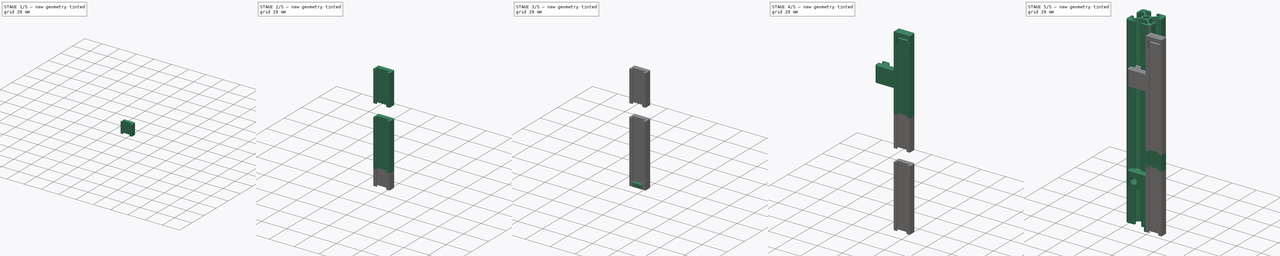
[diagram: build sequence overview — one tinted view per stage of 5, left to right]
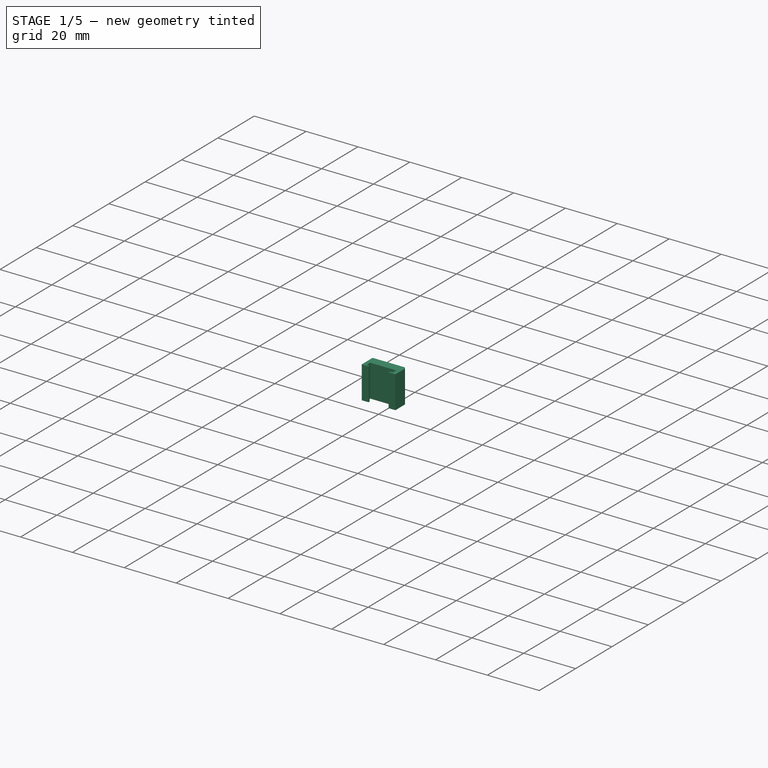
[diagram: stage 1 of 5 — iso view after this stage's code; geometry added in this stage tinted green]
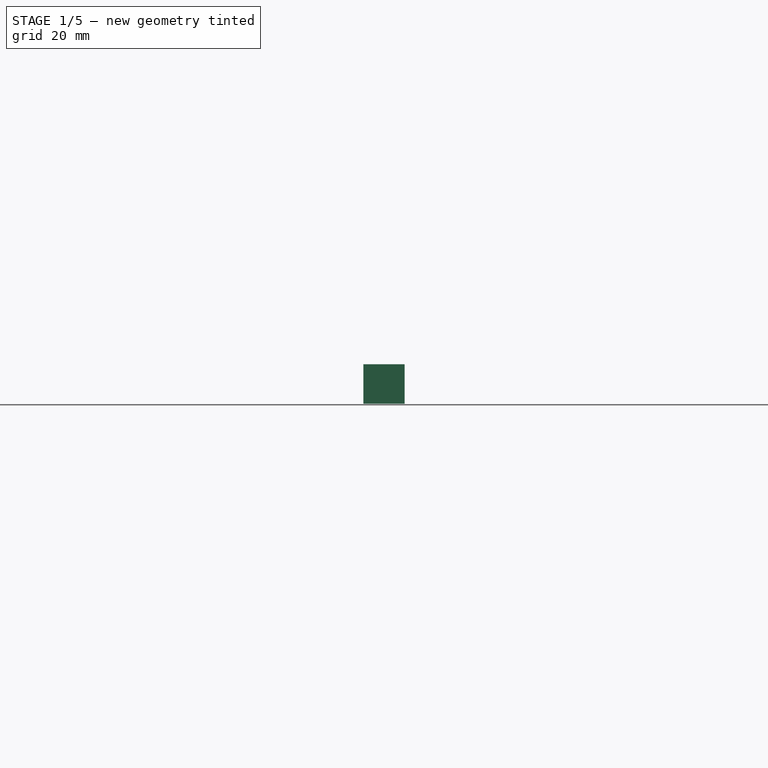
[diagram: stage 1 of 5 — front view after this stage's code; geometry added in this stage tinted green]
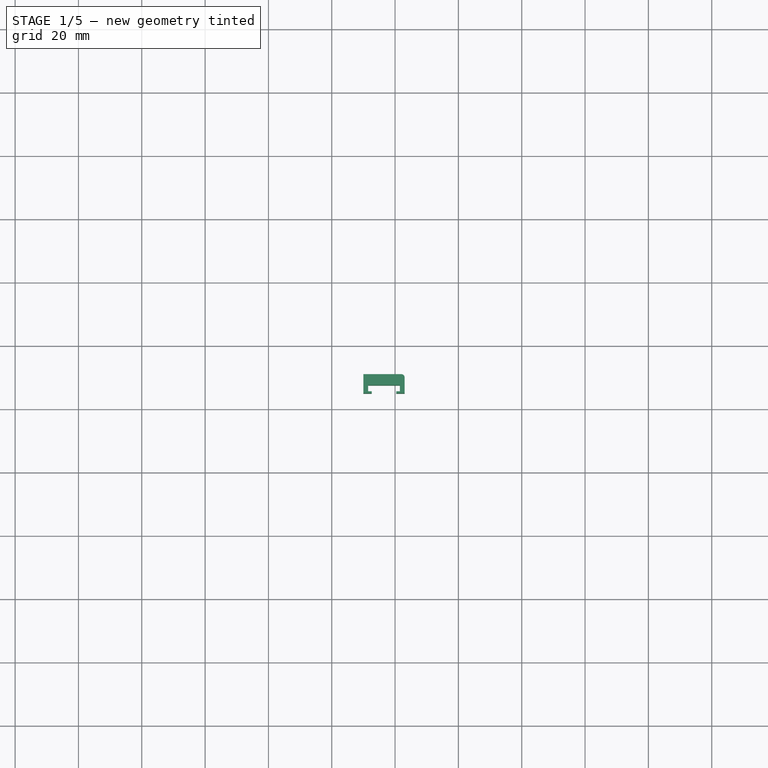
[diagram: stage 1 of 5 — top view after this stage's code; geometry added in this stage tinted green]
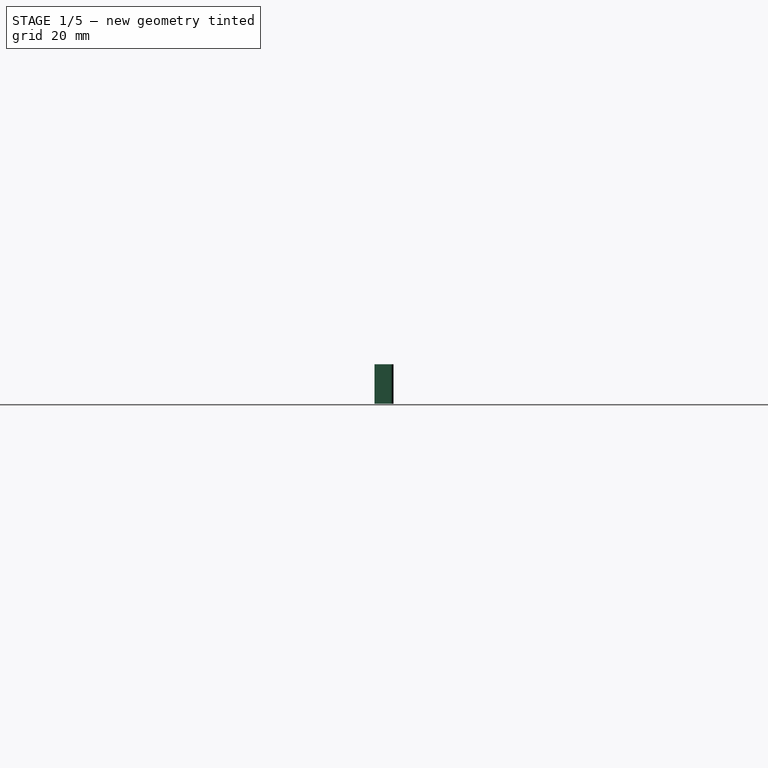
[diagram: stage 1 of 5 — right view after this stage's code; geometry added in this stage tinted green]
FCSTD DOCUMENT  (FreeCAD 0.18R)
Label: LEDstrip-Bracket-BuildingBlocks
License: CreativeCommons Attribution
LicenseURL: http://creativecommons.org/licenses/by/4.0/
objects: PartDesign::Body×14, Sketcher::SketchObject×10, PartDesign::FeatureBase×8, PartDesign::Pad×6, Part::Feature×4, Part::MultiFuse×4, PartDesign::Pocket×3, Spreadsheet::Sheet×1, PartDesign::Revolution×1, App::Part×1, PartDesign::Groove×1, Part::Mirroring×1
note: 63 computed .brp shape members not serialized (recipe doc carries the construction recipe); baked Part::Feature solids carry a one-line shape summary decoded from their .brp

FEATURE [PartDesign::Body] Body  label="ISP5-L20"
  Group = -> [CopySketch029,Pad]
  Origin = -> Origin
  Tip = -> Pad
FEATURE [Sketcher::SketchObject] Sketch015  label="LedStrip-C-Profile"
  MapMode = 5
  Support = -> [XY_Plane031]
  sketch-geometry (13):
    g0: LineSegment StartX=10 StartY=-9 StartZ=0 EndX=10 EndY=-15 EndZ=0
    g1: LineSegment StartX=10 StartY=-15 StartZ=0 EndX=12.625 EndY=-15 EndZ=0
    g2: LineSegment StartX=12.625 StartY=-15 StartZ=0 EndX=12.625 EndY=-14.4 EndZ=0
    g3: LineSegment StartX=12.625 StartY=-14.4 StartZ=0 EndX=11.5 EndY=-14.4 EndZ=0
    g4: LineSegment StartX=11.5 StartY=-14.4 StartZ=0 EndX=11.5 EndY=-12.45 EndZ=0
    g5: LineSegment StartX=11.5 StartY=-12.45 StartZ=0 EndX=21.5 EndY=-12.45 EndZ=0
    g6: LineSegment StartX=21.5 StartY=-12.45 StartZ=0 EndX=21.5 EndY=-14.4 EndZ=0
    g7: LineSegment StartX=21.5 StartY=-14.4 StartZ=0 EndX=20.375 EndY=-14.4 EndZ=0
    g8: LineSegment StartX=20.375 StartY=-14.4 StartZ=0 EndX=20.375 EndY=-15 EndZ=0
    g9: LineSegment StartX=20.375 StartY=-15 StartZ=0 EndX=23 EndY=-15 EndZ=0
    g10: LineSegment StartX=23 StartY=-15 StartZ=0 EndX=23 EndY=-10 EndZ=0
    g11: LineSegment StartX=22 StartY=-9 StartZ=0 EndX=10 EndY=-9 EndZ=0
    g12: ArcOfCircle CenterX=22 CenterY=-10 CenterZ=0 NormalX=0 NormalY=0 NormalZ=1 AngleXU=0 Radius=1 StartAngle=0 EndAngle=1.5708
  constraints (38):
    c: Coincident(g0,g1)
    c: Coincident(g1,g2)
    c: Coincident(g2,g3)
    c: Coincident(g3,g4)
    c: Coincident(g4,g5)
    c: Coincident(g5,g6)
    c: Coincident(g6,g7)
    c: Coincident(g7,g8)
    c: Coincident(g8,g9)
    c: Horizontal(g5)
    c: Horizontal(g3)
    c: Horizontal(g7)
    c: Horizontal(g9)
    c: Horizontal(g1)
    c: Vertical(g10)
    c: Vertical(g8)
    c: Vertical(g2)
    c: Vertical(g0)
    c: Vertical(g4)
    c: DistanceX(g5,g5) = 10
    c: Vertical(g6)
    c: DistanceX(g2,g7) = 7.75
    c: Equal(g3,g7)
    c: DistanceY(g8,g8) = 0.6
    c: Horizontal(g2,g7)
    c: Horizontal(g1,g8)
    c: Horizontal(g11)
    c: DistanceY(g11,g-1) = 9
    c: DistanceY(g4,g4) = 1.95
    c: Tangent(g11,g12) = -1.5708
    c: Tangent(g10,g12) = -1.5708
    c: DistanceX(g-1,g11) = 10
    c: DistanceX(g6,g10) = 1.5
    c: Coincident(g0,g11)
    c: DistanceY(g0,g0) = 6
    c: Radius(g12) = 1
    c: Coincident(g9,g10)
    c: DistanceX(g0,g4) = 1.5
FEATURE [PartDesign::Pad] Pad009  label="LedHolderBase"
  Length = 12.5
  Length2 = 100
  Profile = -> Sketch015
  Type = 0
FEATURE [PartDesign::Body] Body008  label="ClampFix-Part"
  Group = -> [Sketch012,Pad006]
  Origin = -> Origin017
  Placement = pos=(0,-2e-15,18.75) rot=(0.707107,-0.707107,0;3.14159rad)
  Tip = -> Pad006
FEATURE [Sketcher::SketchObject] Sketch016  label="CableStrapPath"
  AttachmentOffset = pos=(0,0,-4) rot=(0,0,1;0rad)
  Placement = pos=(0,0,6.25) rot=(1,0,0;3.14159rad)
  sketch-geometry (10):
    g0: ArcOfCircle CenterX=14.833 CenterY=8.2 CenterZ=0 NormalX=0 NormalY=0 NormalZ=1 AngleXU=0 Radius=2 StartAngle=1.5708 EndAngle=2.73008
    g1: ArcOfCircle CenterX=18.167 CenterY=8.2 CenterZ=0 NormalX=0 NormalY=0 NormalZ=1 AngleXU=0 Radius=2 StartAngle=0.411517 EndAngle=1.5708
    g2: LineSegment StartX=14.833 StartY=10.2 StartZ=0 EndX=18.167 EndY=10.2 EndZ=0
    g3: ArcOfCircle CenterX=14.25 CenterY=9.45 CenterZ=0 NormalX=0 NormalY=0 NormalZ=1 AngleXU=0 Radius=2.25 StartAngle=1.5708 EndAngle=2.46404
    g4: ArcOfCircle CenterX=18.75 CenterY=9.45 CenterZ=0 NormalX=0 NormalY=0 NormalZ=1 AngleXU=0 Radius=2.25 StartAngle=0.677555 EndAngle=1.5708
    g5: LineSegment StartX=14.25 StartY=11.7 StartZ=0 EndX=18.75 EndY=11.7 EndZ=0
    g6: LineSegment StartX=20.503 StartY=10.8605 StartZ=0 EndX=22 EndY=9 EndZ=0
    g7: LineSegment StartX=22 StartY=9 StartZ=0 EndX=20 EndY=9 EndZ=0
    g8: LineSegment StartX=12.497 StartY=10.8605 StartZ=0 EndX=11 EndY=9 EndZ=0
    g9: LineSegment StartX=11 StartY=9 StartZ=0 EndX=13 EndY=9 EndZ=0
  constraints (28):
    c: Tangent(g0,g2) = 1.5708
    c: Tangent(g1,g2) = 1.5708
    c: Horizontal(g0,g1)
    c: Horizontal(g2)
    c: Horizontal(g0,g1)
    c: Tangent(g3,g5) = 1.5708
    c: Tangent(g4,g5) = 1.5708
    c: Horizontal(g3,g4)
    c: Horizontal(g5)
    c: Horizontal(g3,g4)
    c: DistanceY(g1,g4) = 1.5
    c: Coincident(g6,g7)
    c: Coincident(g8,g9)
    c: Horizontal(g9)
    c: Horizontal(g7)
    c: Coincident(g0,g9)
    c: Coincident(g1,g7)
    c: Tangent(g4,g6) = 1.5708
    c: Tangent(g8,g3) = -1.5708
    c: DistanceX(g7,g7) = 2
    c: Equal(g9,g7)
    c: DistanceY(g1,g1) = 1.2
    c: Radius(g3) = 2.25
    c: Radius(g0) = 2
    c: DistanceX(g0,g1) = 7
    c: DistanceX(g5,g5) = 4.5
    c: DistanceY(g-1,g8) = 9
    c: DistanceX(g-1,g8) = 11
FEATURE [PartDesign::Pocket] Pocket001  label="120mmx2.5mm-CableStrapTunnel"
  BaseFeature = -> Pad009
  Length = 3.5
  Length2 = 100
  Midplane = true
  Profile = -> Sketch016
  Type = 0
FEATURE [PartDesign::Body] Body019  label="SF-Seg1"
  BaseFeature = -> Body012
  Group = -> [Clone]
  Origin = -> Origin029
  Tip = -> Clone
FEATURE [PartDesign::FeatureBase] Clone001
  BaseFeature = -> Body012
FEATURE [PartDesign::Body] Body012006  label="CF-Seg2"
  Group = -> [Clone006]
  Origin = -> Origin036
  Placement = pos=(0,0,12.5) rot=(0,0,1;0rad)
  Tip = -> Clone006
FEATURE [PartDesign::FeatureBase] Clone007
  BaseFeature = -> Clone001
FEATURE [PartDesign::Body] Body012007  label="CF-Seg3"
  Group = -> [Clone007]
  Origin = -> Origin037
  Placement = pos=(0,0,25) rot=(0,0,1;0rad)
  Tip = -> Clone007
FEATURE [PartDesign::FeatureBase] Clone008
  BaseFeature = -> Clone001
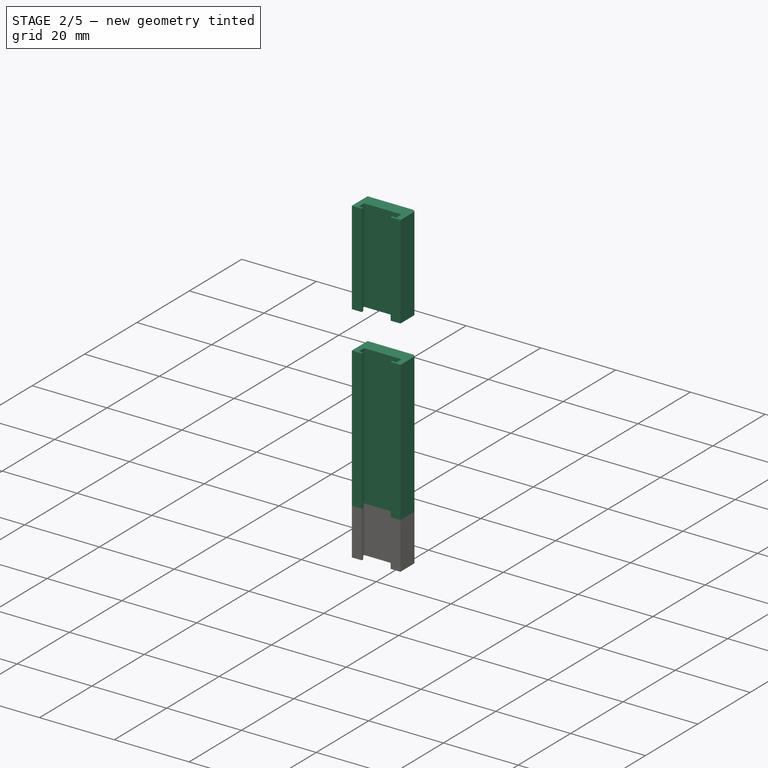
[diagram: stage 2 of 5 — iso view after this stage's code; geometry added in this stage tinted green]
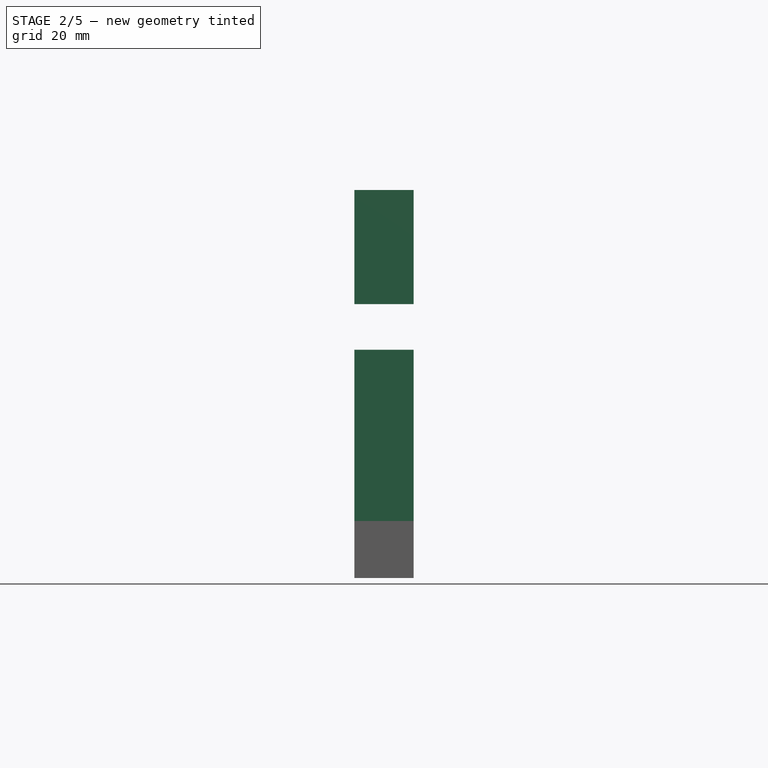
[diagram: stage 2 of 5 — front view after this stage's code; geometry added in this stage tinted green]
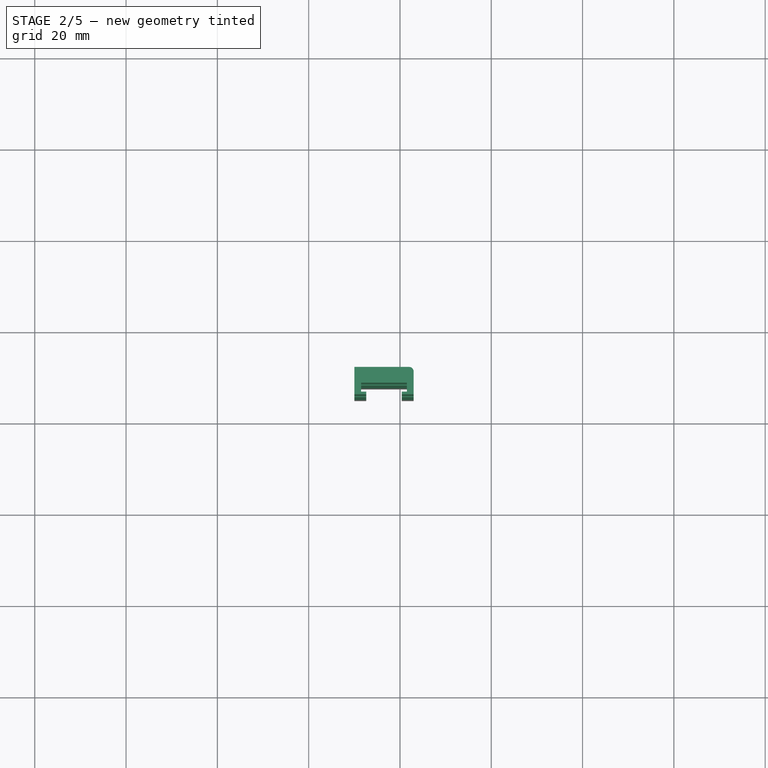
[diagram: stage 2 of 5 — top view after this stage's code; geometry added in this stage tinted green]
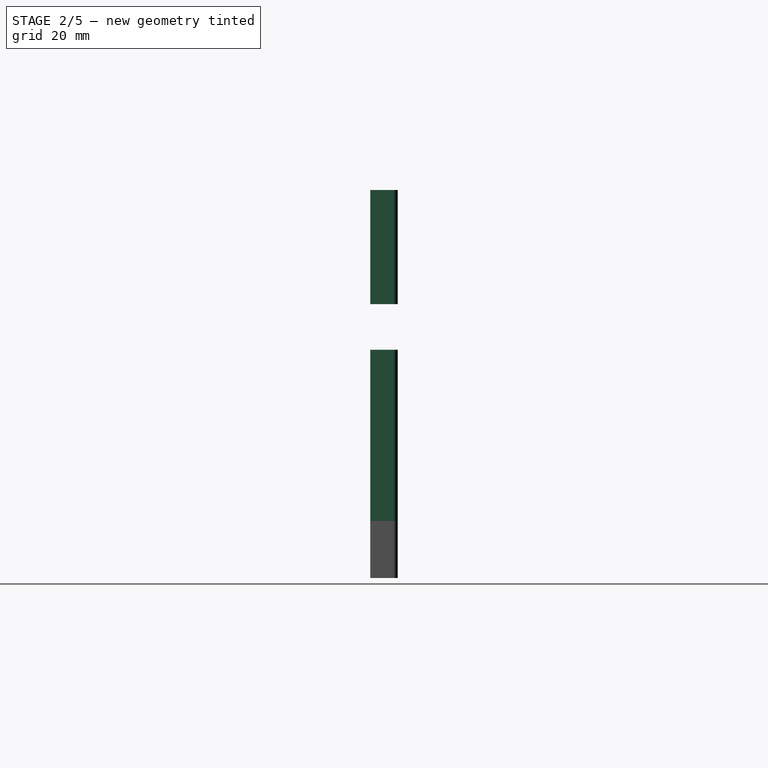
[diagram: stage 2 of 5 — right view after this stage's code; geometry added in this stage tinted green]
FEATURE [Part::Feature] Body012001  label="LedStripBracket-12.5mm-Segment001"
  shape: bbox 13 x 6 x 12.5 mm, 25 faces (baked)
FEATURE [Part::Feature] Body012002  label="LedStripBracket-12.5mm-Segment002"
  Placement = pos=(0,0,12.5) rot=(0,0,1;0rad)
  shape: bbox 13 x 6 x 12.5 mm, 25 faces (baked)
FEATURE [Part::MultiFuse] Fusion003  label="25mm-Segment"
  Placement = pos=(0,0,60) rot=(0,0,1;0rad)
  Shapes = -> [Body012002,Body012001]
FEATURE [Part::Feature] Fusion003001  label="25mm-Segment001"
  shape: bbox 13 x 6 x 25 mm, 48 faces (baked)
FEATURE [Part::Feature] Fusion003002  label="25mm-Segment002"
  Placement = pos=(0,0,25) rot=(0,0,1;0rad)
  shape: bbox 13 x 6 x 25 mm, 48 faces (baked)
FEATURE [Part::MultiFuse] Fusion003003  label="50mm-Segment"
  Shapes = -> [Fusion003002,Fusion003001]
FEATURE [PartDesign::FeatureBase] Clone004
  BaseFeature = -> Body012
FEATURE [PartDesign::Body] Body012004  label="SF-Seg3"
  Group = -> [Clone004]
  Origin = -> Origin034
  Placement = pos=(0,0,25) rot=(0,0,1;0rad)
  Tip = -> Clone004
FEATURE [PartDesign::FeatureBase] Clone005
  BaseFeature = -> Body012
FEATURE [PartDesign::FeatureBase] Clone006
  BaseFeature = -> Clone001
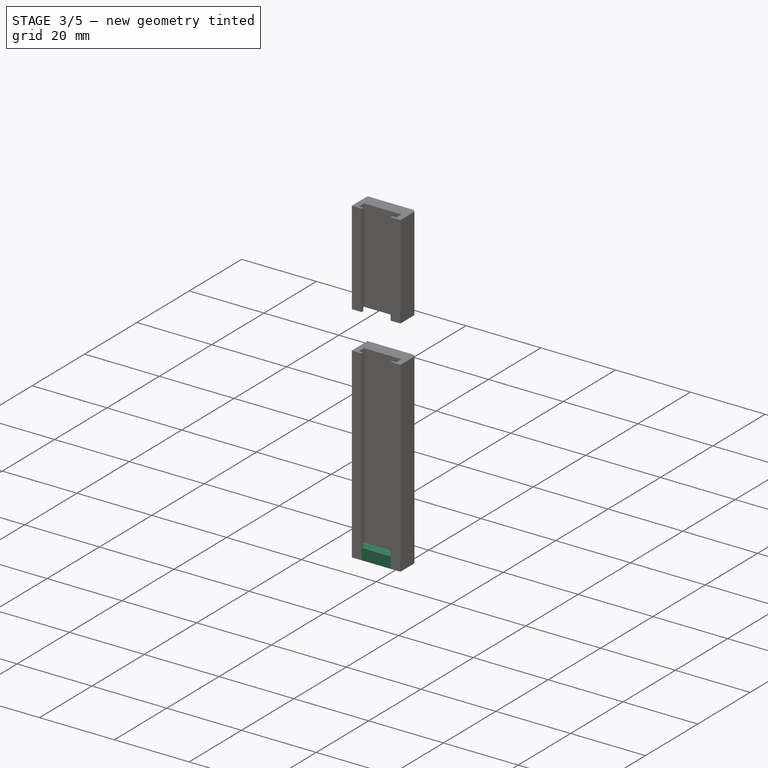
[diagram: stage 3 of 5 — iso view after this stage's code; geometry added in this stage tinted green]
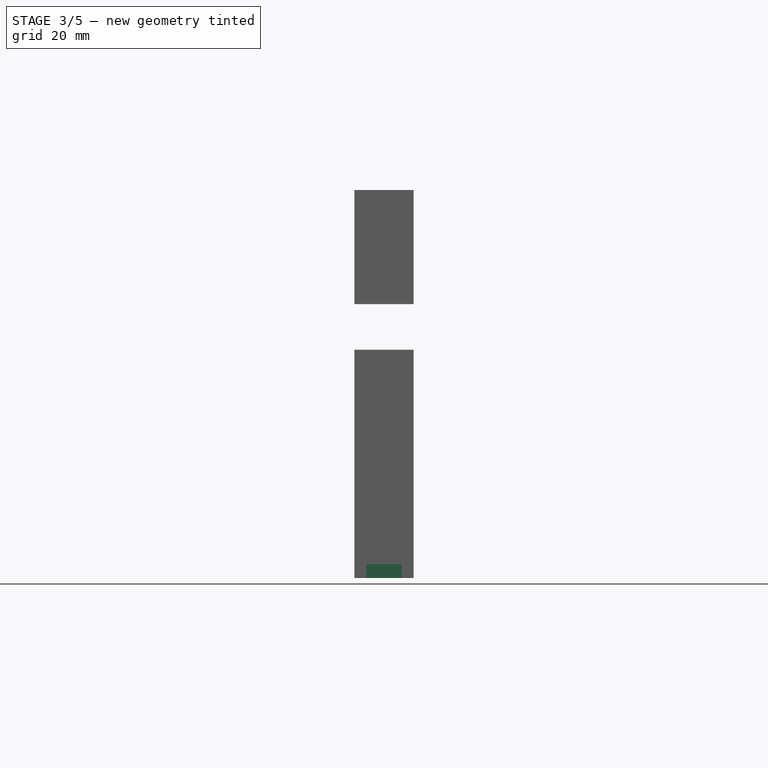
[diagram: stage 3 of 5 — front view after this stage's code; geometry added in this stage tinted green]
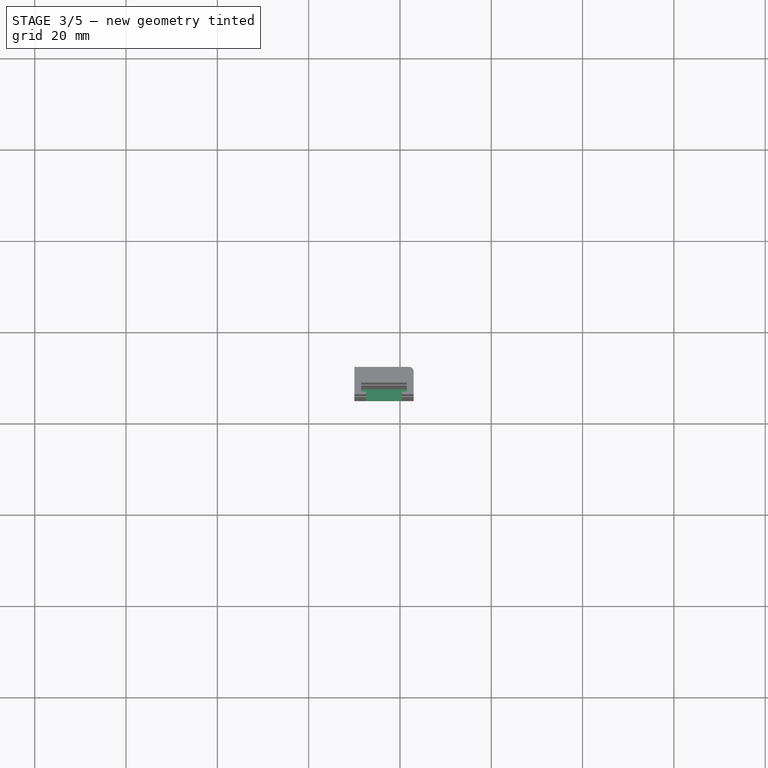
[diagram: stage 3 of 5 — top view after this stage's code; geometry added in this stage tinted green]
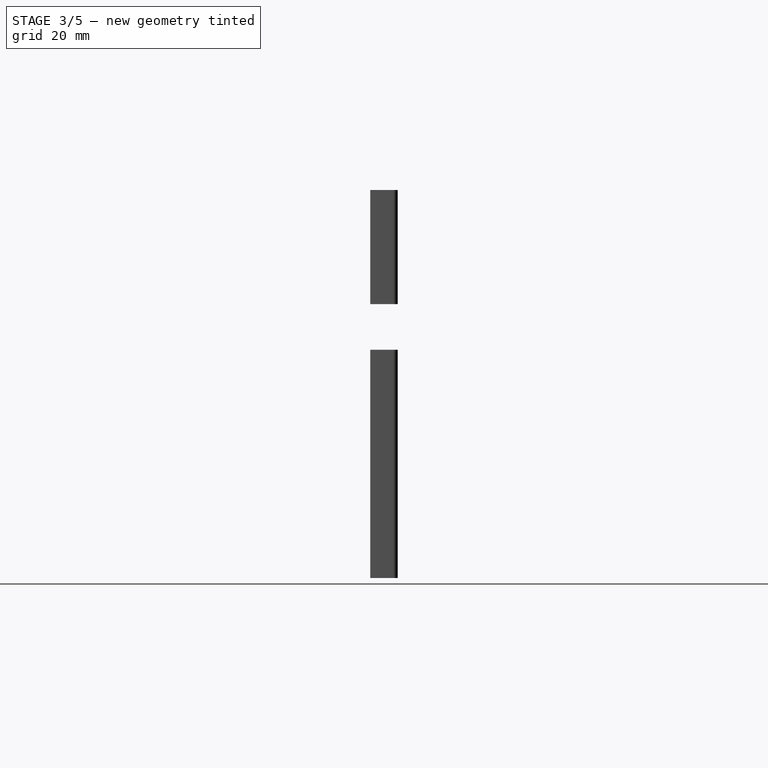
[diagram: stage 3 of 5 — right view after this stage's code; geometry added in this stage tinted green]
FEATURE [PartDesign::Body] Body020  label="CF-Seg1"
  BaseFeature = -> Body012
  Group = -> [Clone001]
  Origin = -> Origin030
  Tip = -> Clone001
FEATURE [PartDesign::Pad] Pad014  label="LedHolderBase001"
  Length = 10
  Length2 = 100
  Profile = -> Sketch015
  Type = 0
FEATURE [Sketcher::SketchObject] Sketch  label="CableViaProfile"
  MapMode = 5
  Placement = pos=(0,-12.45,0) rot=(1,0,0;1.5708rad)
  Support = -> [Pad014]
  sketch-geometry (4):
    g0: LineSegment StartX=21.5 StartY=5.5 StartZ=0 EndX=11.5 EndY=5.5 EndZ=0
    g1: LineSegment StartX=21.5 StartY=3 StartZ=0 EndX=11.5 EndY=3 EndZ=0
    g2: LineSegment StartX=11.5 StartY=5.5 StartZ=0 EndX=11.5 EndY=3 EndZ=0
    g3: LineSegment StartX=21.5 StartY=5.5 StartZ=0 EndX=21.5 EndY=3 EndZ=0
  constraints (12):
    c: Horizontal(g0)
    c: DistanceX(g0,g0) = 10
    c: Coincident(g0,g2)
    c: Coincident(g1,g2)
    c: Coincident(g0,g3)
    c: Coincident(g1,g3)
    c: Vertical(g3)
    c: Vertical(g2)
    c: Horizontal(g1)
    c: DistanceX(g-1,g1) = 11.5
    c: DistanceY(g2,g2) = 2.5
    c: DistanceY(g-1,g1) = 3
FEATURE [PartDesign::Pocket] Pocket  label="CableVIa"
  BaseFeature = -> Pad014
  Length = 5
  Length2 = 100
  Profile = -> Sketch
  Type = 0
FEATURE [Sketcher::SketchObject] Sketch029
  MapMode = 5
  Placement = pos=(0,0,0) rot=(1,0,0;3.14159rad)
  Support = -> [Pocket]
  sketch-geometry (4):
    g0: LineSegment StartX=10 StartY=15 StartZ=0 EndX=23 EndY=15 EndZ=0
    g1: LineSegment StartX=23 StartY=15 StartZ=0 EndX=23 EndY=12 EndZ=0
    g2: LineSegment StartX=23 StartY=12 StartZ=0 EndX=10 EndY=12 EndZ=0
    g3: LineSegment StartX=10 StartY=12 StartZ=0 EndX=10 EndY=15 EndZ=0
  constraints (12):
    c: Coincident(g0,g1)
    c: Coincident(g1,g2)
    c: Coincident(g2,g3)
    c: Coincident(g3,g0)
    c: Horizontal(g0)
    c: Horizontal(g2)
    c: Vertical(g1)
    c: Vertical(g3)
    c: DistanceX(g0,g0) = 13
    c: DistanceX(g-1,g0) = 10
    c: DistanceY(g3,g3) = 3
    c: DistanceY(g-1,g0) = 15
FEATURE [PartDesign::Pad] Pad015
  BaseFeature = -> Pocket
  Length = 3
  Length2 = 100
  Profile = -> Sketch029
  Reversed = true
  Type = 0
FEATURE [Sketcher::SketchObject] Sketch030
  MapMode = 5
  Placement = pos=(0,-15,0) rot=(1,0,0;1.5708rad)
  Support = -> [Pad015]
  sketch-geometry (4):
    g0: LineSegment StartX=11.5 StartY=10 StartZ=0 EndX=21.5 EndY=10 EndZ=0
    g1: LineSegment StartX=21.5 StartY=10 StartZ=0 EndX=21.5 EndY=3 EndZ=0
    g2: LineSegment StartX=21.5 StartY=3 StartZ=0 EndX=11.5 EndY=3 EndZ=0
    g3: LineSegment StartX=11.5 StartY=3 StartZ=0 EndX=11.5 EndY=10 EndZ=0
  constraints (12):
    c: Coincident(g0,g1)
    c: Coincident(g1,g2)
    c: Coincident(g2,g3)
    c: Coincident(g3,g0)
    c: Horizontal(g0)
    c: Horizontal(g2)
    c: Vertical(g1)
    c: Vertical(g3)
    c: DistanceX(g-1,g2) = 11.5
    c: DistanceX(g0,g0) = 10
    c: DistanceY(g-1,g2) = 3
    c: DistanceY(g3,g3) = 7
FEATURE [PartDesign::Pocket] Pocket002
  BaseFeature = -> Pad015
  Length = 1
  Length2 = 100
  Profile = -> Sketch030
  Type = 0
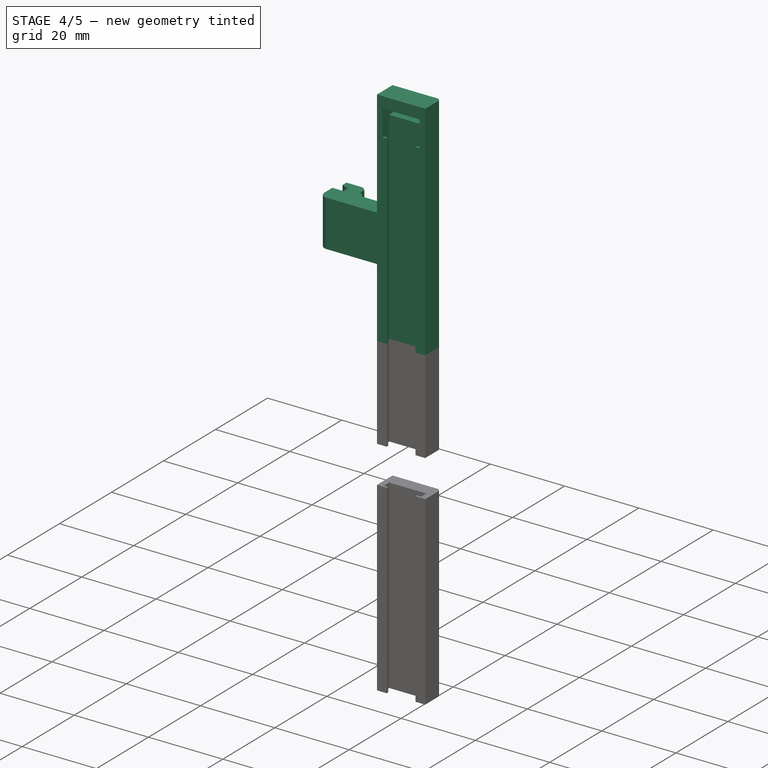
[diagram: stage 4 of 5 — iso view after this stage's code; geometry added in this stage tinted green]
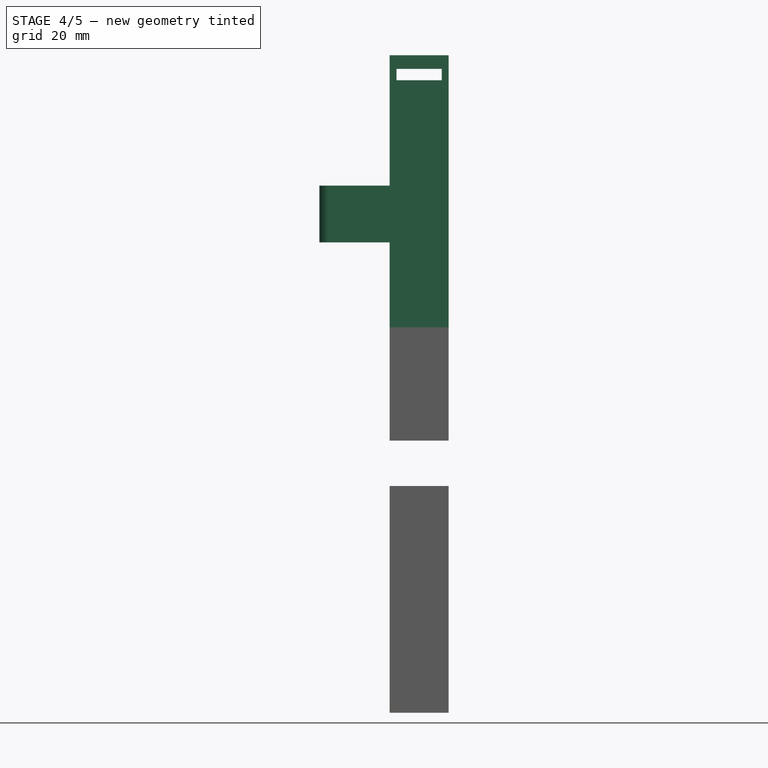
[diagram: stage 4 of 5 — front view after this stage's code; geometry added in this stage tinted green]
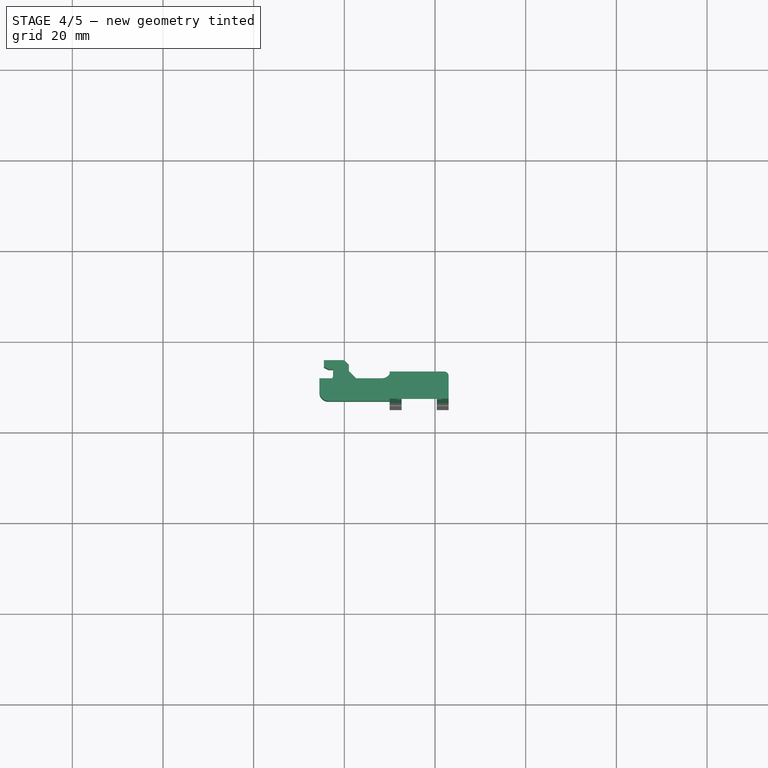
[diagram: stage 4 of 5 — top view after this stage's code; geometry added in this stage tinted green]
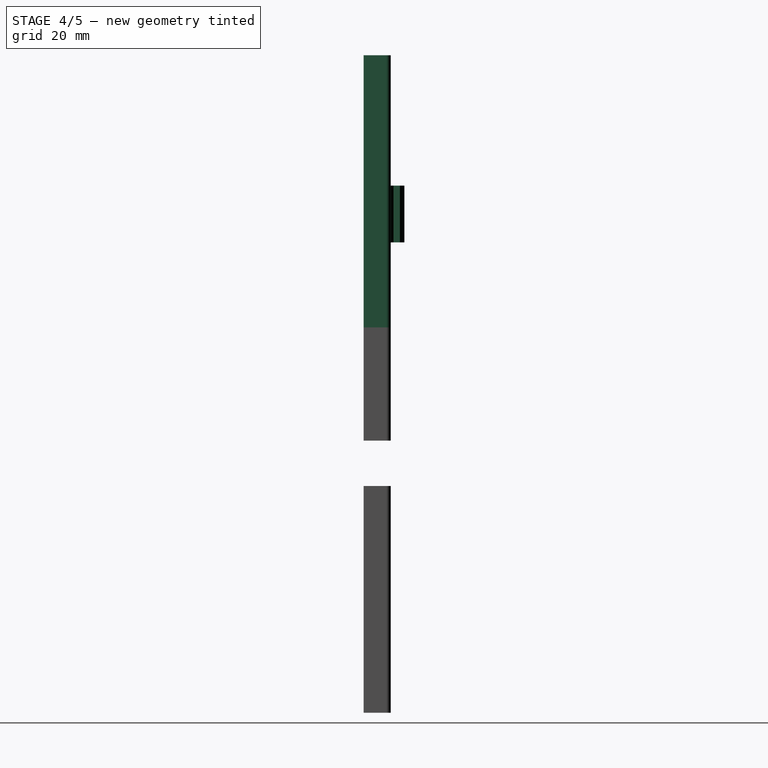
[diagram: stage 4 of 5 — right view after this stage's code; geometry added in this stage tinted green]
FEATURE [Sketcher::SketchObject] Sketch012  label="ClampFix-Profile"
  MapMode = 5
  Support = -> [XY_Plane017]
  sketch-geometry (16):
    g0: LineSegment StartX=15 StartY=3.5 StartZ=0 EndX=15 EndY=-10 EndZ=0
    g1: LineSegment StartX=15 StartY=-10 StartZ=0 EndX=9 EndY=-10 EndZ=0
    g2: LineSegment StartX=10 StartY=-8.26795 StartZ=0 EndX=10 EndY=-2.6 EndZ=0
    g3: LineSegment StartX=8.4 StartY=-1 StartZ=0 EndX=7 EndY=-1 EndZ=0
    g4: LineSegment StartX=6 StartY=5e-16 StartZ=0 EndX=6 EndY=4.5 EndZ=0
    g5: LineSegment StartX=6 StartY=4.5 StartZ=0 EndX=7.53369 EndY=4.5 EndZ=0
    g6: LineSegment StartX=8 StartY=3.5 StartZ=0 EndX=8 EndY=2.5 EndZ=0
    g7: LineSegment StartX=10 StartY=2.7 StartZ=0 EndX=10 EndY=5.5 EndZ=0
    g8: LineSegment StartX=7.53369 StartY=4.5 StartZ=0 EndX=8 EndY=3.5 EndZ=0
    g9: LineSegment StartX=8.4 StartY=-1 StartZ=0 EndX=10 EndY=-2.6 EndZ=0
    g10: LineSegment StartX=6 StartY=5e-16 StartZ=0 EndX=7 EndY=-1 EndZ=0
    g11: LineSegment StartX=8 StartY=2.5 StartZ=0 EndX=9.65 EndY=2.5 EndZ=0
    g12: LineSegment StartX=9.65 StartY=2.5 StartZ=0 EndX=10 EndY=2.7 EndZ=0
    g13: LineSegment StartX=10 StartY=5.5 StartZ=0 EndX=13 EndY=5.5 EndZ=0
    g14: ArcOfCircle CenterX=13 CenterY=3.5 CenterZ=0 NormalX=0 NormalY=0 NormalZ=1 AngleXU=0 Radius=2 StartAngle=0 EndAngle=1.5708
    g15: ArcOfCircle CenterX=8 CenterY=-8.26795 CenterZ=0 NormalX=0 NormalY=0 NormalZ=1 AngleXU=0 Radius=2 StartAngle=5.23599 EndAngle=6.28319
  constraints (47):
    c: Coincident(g0,g1)
    c: Coincident(g4,g5)
    c: Horizontal(g3)
    c: Horizontal(g5)
    c: Horizontal(g1)
    c: Vertical(g2)
    c: Vertical(g0)
    c: Vertical(g7)
    c: Vertical(g6)
    c: Vertical(g4)
    c: DistanceX(g6,g7) = 2
    c: Coincident(g5,g8)
    c: Coincident(g8,g6)
    c: DistanceX(g-1,g7) = 10
    c: DistanceY(g6,g6) = 1
    c: DistanceY(g6,g5) = 1
    c: DistanceX(g4,g6) = 2
    c: Coincident(g2,g9)
    c: Coincident(g3,g9)
    c: Coincident(g3,g10)
    c: Coincident(g4,g10)
    c: Angle(g8,g-1) = 1.13446
    c: Angle(g-1,g9) = 2.35619
    c: Parallel(g10,g9)
    c: DistanceY(g2,g-1) = 2.6
    c: DistanceY(g3,g-1) = 1
    c: DistanceX(g4,g3) = 1
    c: Coincident(g7,g12)
    c: Coincident(g11,g12)
    c: Coincident(g6,g11)
    c: DistanceY(g7) = 2.7
    c: Horizontal(g11)
    c: DistanceY(g-1,g11) = 2.5
    c: DistanceX(g11,g7) = 0.35
    c: Tangent(g13,g14) = 1.5708
    c: Coincident(g7,g13)
    c: Horizontal(g13)
    c: Tangent(g0,g14) = 1.5708
    c: Radius(g14) = 2
    c: DistanceY(g-1,g7) = 5.5
    c: DistanceY(g0,g-1) = 10
    c: Radius(g15) = 2
    c: Tangent(g2,g15) = -1.5708
    c: Coincident(g15,g1)
    c: Vertical(g7,g2)
    c: DistanceX(g1,g1) = 6
    c: DistanceX(g-1,g1) = 9
FEATURE [PartDesign::Pad] Pad006
  Length = 12.5
  Length2 = 100
  Profile = -> Sketch012
  Reversed = true
  Type = 0
FEATURE [PartDesign::Body] Body018  label="ScrewFix-Part"
  Group = -> [Sketch027,Pad013,Sketch028,Groove]
  Origin = -> Origin028
  Placement = pos=(0,0,18.75) rot=(0,0,1;0rad)
  Tip = -> Groove
FEATURE [PartDesign::FeatureBase] Clone
  BaseFeature = -> Body012
FEATURE [PartDesign::Body] Body021  label="10mm-EndBracketT"
  Group = -> [Pad014,Sketch,Pocket,Sketch029,Pad015,Sketch030,Pocket002]
  Origin = -> Origin031
  Tip = -> Pocket002
FEATURE [PartDesign::FeatureBase] Clone002
  BaseFeature = -> Body019
FEATURE [PartDesign::Body] Body022  label="SF-Seg2"
  BaseFeature = -> Body019
  Group = -> [Clone002]
  Origin = -> Origin032
  Placement = pos=(0,0,12.5) rot=(0,0,1;0rad)
  Tip = -> Clone002
FEATURE [Part::Mirroring] Part__Mirroring  label="10mm-EndBracketB"
  Base = (0,0,72.5)
  Normal = (0,0,1)
  Source = -> Body021
FEATURE [PartDesign::Body] Body012008  label="CF-Seg4"
  Group = -> [Clone008]
  Origin = -> Origin038
  Placement = pos=(0,0,37.5) rot=(0,0,1;0rad)
  Tip = -> Clone008
FEATURE [Part::MultiFuse] Fusion002  label="50mm-ClampFix"
  Placement = pos=(0,0,85) rot=(0,0,1;0rad)
  Shapes = -> [Body008,Body020,Body012006,Body012007,Body012008]
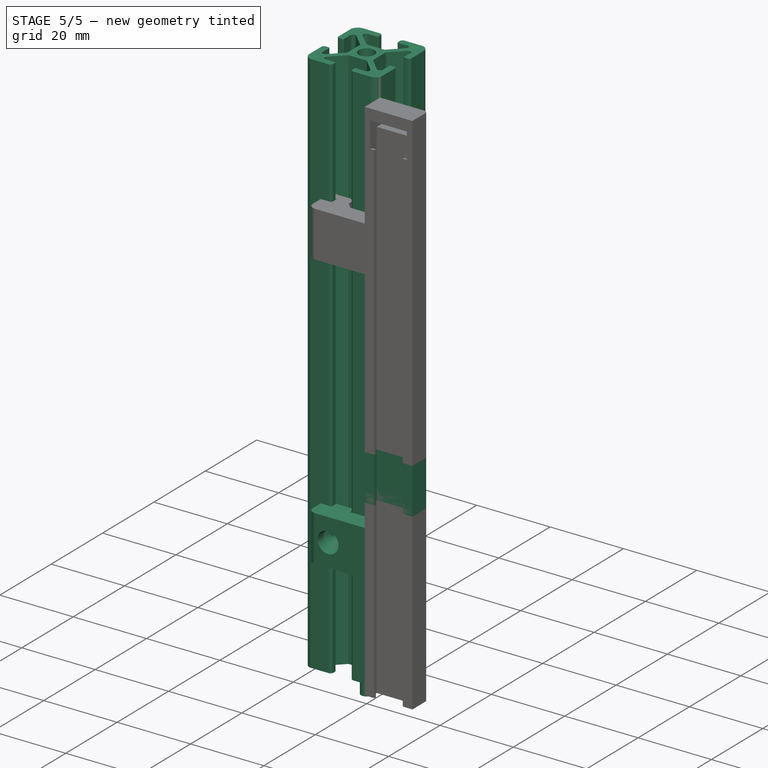
[diagram: stage 5 of 5 — iso view after this stage's code; geometry added in this stage tinted green]
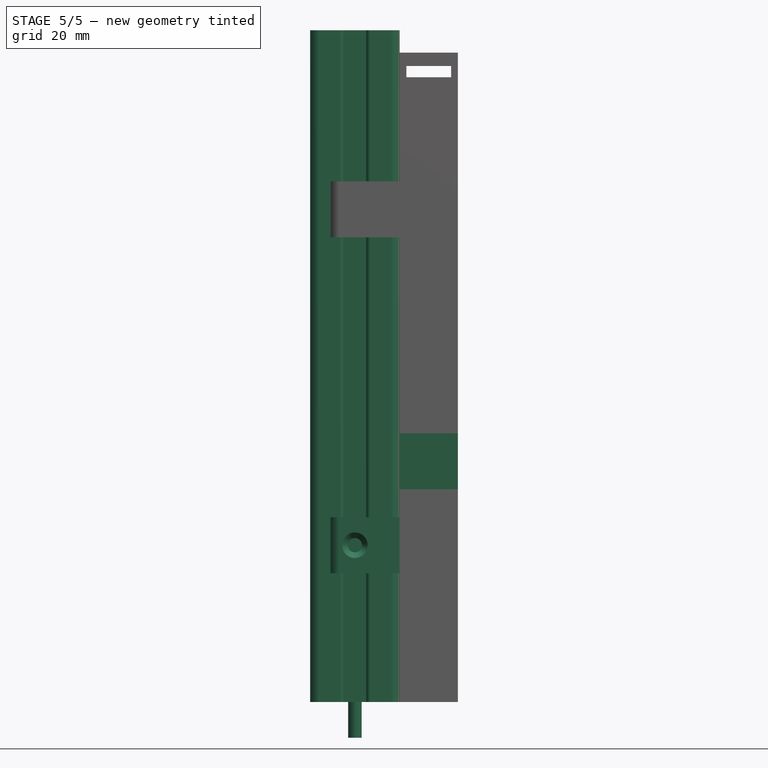
[diagram: stage 5 of 5 — front view after this stage's code; geometry added in this stage tinted green]
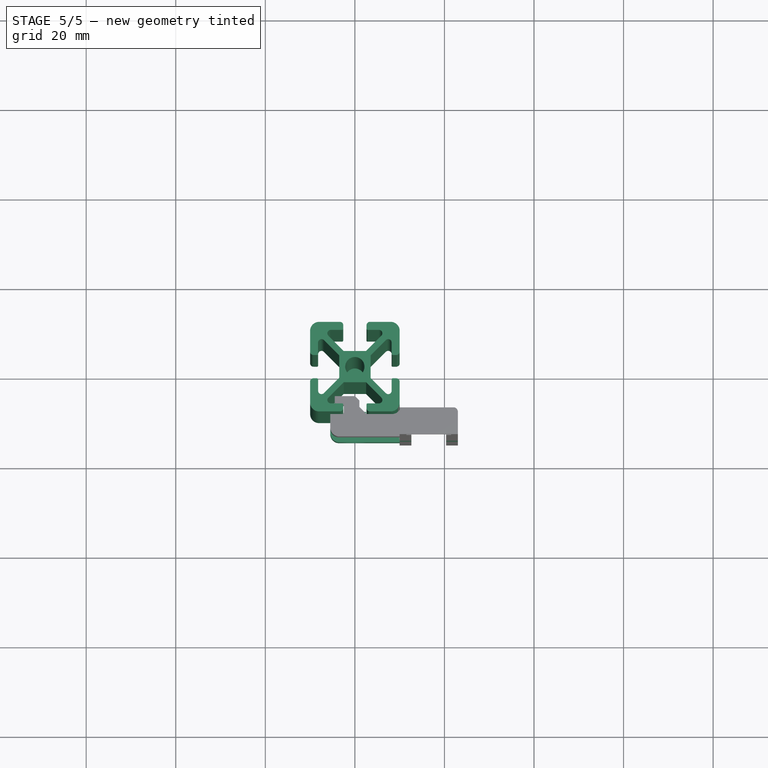
[diagram: stage 5 of 5 — top view after this stage's code; geometry added in this stage tinted green]
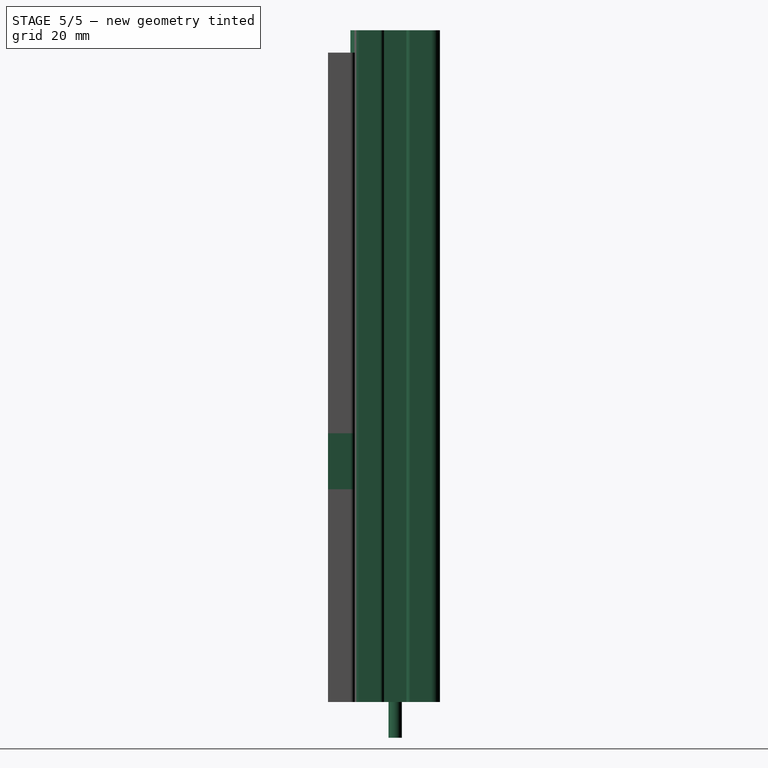
[diagram: stage 5 of 5 — right view after this stage's code; geometry added in this stage tinted green]
FEATURE [Spreadsheet::Sheet] Spreadsheet  label="Par"
  cells = A1=Length of single section; B1(SectionLength)=25
FEATURE [Sketcher::SketchObject] Sketch011  label="M3x8 Profile"
  MapMode = 5
  Placement = pos=(0,0,0) rot=(1,0,0;1.5708rad)
  sketch-geometry (6):
    g0: LineSegment StartX=0 StartY=3 StartZ=0 EndX=0 EndY=-8 EndZ=0
    g1: LineSegment StartX=0 StartY=-8 StartZ=0 EndX=1.5 EndY=-8 EndZ=0
    g2: LineSegment StartX=1.5 StartY=-8 StartZ=0 EndX=1.5 EndY=0 EndZ=0
    g3: LineSegment StartX=1.5 StartY=0 StartZ=0 EndX=2.75 EndY=0 EndZ=0
    g4: LineSegment StartX=2.75 StartY=0 StartZ=0 EndX=2.75 EndY=3 EndZ=0
    g5: LineSegment StartX=2.75 StartY=3 StartZ=0 EndX=0 EndY=3 EndZ=0
  constraints (18):
    c: Coincident(g0,g1)
    c: Coincident(g1,g2)
    c: Coincident(g2,g3)
    c: Coincident(g3,g4)
    c: Coincident(g4,g5)
    c: Coincident(g0,g5)
    c: Horizontal(g5)
    c: Vertical(g0)
    c: PointOnObject(g0,g-2)
    c: Horizontal(g3)
    c: Vertical(g4)
    c: Vertical(g2)
    c: Horizontal(g1)
    c: DistanceY(g2,g2) = 8
    c: PointOnObject(g2,g-1)
    c: DistanceY(g4,g4) = 3
    c: DistanceX(g5,g5) = 2.75
    c: DistanceX(g1,g1) = 1.5
FEATURE [PartDesign::Revolution] Revolution002
  Angle = 360
  Axis = (0,-2e-16,1)
  Base = (0,0,0)
  Placement = pos=(0,0,0) rot=(1,0,0;1.5708rad)
  Profile = -> Sketch011
  ReferenceAxis = -> Sketch011 [V_Axis]
  Reversed = true
FEATURE [PartDesign::Body] Body005  label="DIN912-M3x8"
  Group = -> [Sketch011,Revolution002]
  Origin = -> Origin012
  Tip = -> Revolution002
FEATURE [App::Part] Part006  label="M3x8"
  Group = -> [Body005]
  Origin = -> Origin014
  Placement = pos=(-1e-16,-12,6.25) rot=(0.57735,0.57735,-0.57735;2.0944rad)
FEATURE [Sketcher::SketchObject] CopySketch029  label="ISP5-L20-Profile"
  MapMode = 5
  sketch-geometry (70):
    g0: LineSegment StartX=-2.5 StartY=3.5 StartZ=0 EndX=-5.91967 EndY=6.91967 EndZ=0
    g1: LineSegment StartX=-5.38934 StartY=8.2 StartZ=0 EndX=-2.85 EndY=8.2 EndZ=0
    g2: LineSegment StartX=-3.35 StartY=10 StartZ=0 EndX=-8 EndY=10 EndZ=0
    g3: LineSegment StartX=-10 StartY=8 StartZ=0 EndX=-10 EndY=3.35 EndZ=0
    g4: LineSegment StartX=-9.25 StartY=2.6 StartZ=0 EndX=-8.45 EndY=2.6 EndZ=0
    g5: LineSegment StartX=-8.2 StartY=2.85 StartZ=0 EndX=-8.2 EndY=5.38934 EndZ=0
    g6: LineSegment StartX=-6.91967 StartY=5.91967 StartZ=0 EndX=-3.5 EndY=2.5 EndZ=0
    g7: LineSegment StartX=-2.6 StartY=9.25 StartZ=0 EndX=-2.6 EndY=8.45 EndZ=0
    g8: ArcOfCircle CenterX=-8 CenterY=8 CenterZ=0 NormalX=0 NormalY=0 NormalZ=1 AngleXU=0 Radius=2 StartAngle=1.5708 EndAngle=3.14159
    g9: ArcOfCircle CenterX=-3.35 CenterY=9.25 CenterZ=0 NormalX=0 NormalY=0 NormalZ=1 AngleXU=0 Radius=0.75 StartAngle=6e-16 EndAngle=1.5708
    g10: ArcOfCircle CenterX=-9.25 CenterY=3.35 CenterZ=0 NormalX=0 NormalY=0 NormalZ=1 AngleXU=0 Radius=0.75 StartAngle=3.14159 EndAngle=4.71239
    g11: ArcOfCircle CenterX=-5.38934 CenterY=7.45 CenterZ=0 NormalX=0 NormalY=0 NormalZ=1 AngleXU=0 Radius=0.75 StartAngle=1.5708 EndAngle=3.92699
    g12: ArcOfCircle CenterX=-7.45 CenterY=5.38934 CenterZ=0 NormalX=0 NormalY=0 NormalZ=1 AngleXU=0 Radius=0.75 StartAngle=0.785398 EndAngle=3.14159
    g13: LineSegment [constr] StartX=-5.38934 StartY=7.45 StartZ=0 EndX=-7.45 EndY=5.38934 EndZ=0
    g14: ArcOfCircle CenterX=-2.85 CenterY=8.45 CenterZ=0 NormalX=0 NormalY=0 NormalZ=1 AngleXU=0 Radius=0.25 StartAngle=4.71239 EndAngle=6.28319
    g15: Circle CenterX=0 CenterY=0 CenterZ=0 NormalX=0 NormalY=0 NormalZ=1 AngleXU=0 Radius=2.15
    g16: LineSegment StartX=2.5 StartY=3.5 StartZ=0 EndX=5.91967 EndY=6.91967 EndZ=0
    g17: LineSegment StartX=3.5 StartY=-2.5 StartZ=0 EndX=6.91967 EndY=-5.91967 EndZ=0
    g18: LineSegment StartX=2.5 StartY=-3.5 StartZ=0 EndX=5.91967 EndY=-6.91967 EndZ=0
    g19: LineSegment StartX=-2.5 StartY=-3.5 StartZ=0 EndX=-5.91967 EndY=-6.91967 EndZ=0
    g20: LineSegment StartX=-3.5 StartY=-2.5 StartZ=0 EndX=-6.91967 EndY=-5.91967 EndZ=0
    g21: LineSegment StartX=3.5 StartY=2.5 StartZ=0 EndX=6.91967 EndY=5.91967 EndZ=0
    g22: ArcOfCircle CenterX=-7.45 CenterY=-5.38934 CenterZ=0 NormalX=0 NormalY=0 NormalZ=1 AngleXU=0 Radius=0.75 StartAngle=3.14159 EndAngle=5.49779
    g23: ArcOfCircle CenterX=-5.38934 CenterY=-7.45 CenterZ=0 NormalX=0 NormalY=0 NormalZ=1 AngleXU=0 Radius=0.75 StartAngle=2.35619 EndAngle=4.71239
    g24: ArcOfCircle CenterX=5.38934 CenterY=-7.45 CenterZ=0 NormalX=0 NormalY=0 NormalZ=1 AngleXU=0 Radius=0.75 StartAngle=4.71239 EndAngle=7.06858
    g25: ArcOfCircle CenterX=7.45 CenterY=-5.38934 CenterZ=0 NormalX=0 NormalY=0 NormalZ=1 AngleXU=0 Radius=0.75 StartAngle=3.92699 EndAngle=6.28319
    g26: ArcOfCircle CenterX=5.38934 CenterY=7.45 CenterZ=0 NormalX=0 NormalY=0 NormalZ=1 AngleXU=0 Radius=0.75 StartAngle=5.49779 EndAngle=7.85398
    g27: ArcOfCircle CenterX=7.45 CenterY=5.38934 CenterZ=0 NormalX=0 NormalY=0 NormalZ=1 AngleXU=0 Radius=0.75 StartAngle=6e-16 EndAngle=2.35619
    g28: LineSegment StartX=-5.38934 StartY=-8.2 StartZ=0 EndX=-2.85 EndY=-8.2 EndZ=0
    g29: LineSegment StartX=2.85 StartY=-8.2 StartZ=0 EndX=5.38934 EndY=-8.2 EndZ=0
    g30: LineSegment StartX=8.2 StartY=-5.38934 StartZ=0 EndX=8.2 EndY=-2.85 EndZ=0
    g31: LineSegment StartX=8.2 StartY=5.38934 StartZ=0 EndX=8.2 EndY=2.85 EndZ=0
    g32: LineSegment StartX=5.38934 StartY=8.2 StartZ=0 EndX=2.85 EndY=8.2 EndZ=0
    g33: LineSegment StartX=-8.2 StartY=-5.38934 StartZ=0 EndX=-8.2 EndY=-2.85 EndZ=0
    g34: ArcOfCircle CenterX=-8.45 CenterY=-2.85 CenterZ=0 NormalX=0 NormalY=0 NormalZ=1 AngleXU=0 Radius=0.25 StartAngle=7e-16 EndAngle=1.5708
    g35: ArcOfCircle CenterX=-2.85 CenterY=-8.45 CenterZ=0 NormalX=0 NormalY=0 NormalZ=1 AngleXU=0 Radius=0.25 StartAngle=1e-15 EndAngle=1.5708
    g36: ArcOfCircle CenterX=2.85 CenterY=-8.45 CenterZ=0 NormalX=0 NormalY=0 NormalZ=1 AngleXU=0 Radius=0.25 StartAngle=1.5708 EndAngle=3.14159
    g37: ArcOfCircle CenterX=8.45 CenterY=-2.85 CenterZ=0 NormalX=0 NormalY=0 NormalZ=1 AngleXU=0 Radius=0.25 StartAngle=1.5708 EndAngle=3.14159
    g38: LineSegment StartX=2.6 StartY=9.25 StartZ=0 EndX=2.6 EndY=8.45 EndZ=0
    g39: LineSegment StartX=8.45 StartY=2.6 StartZ=0 EndX=9.25 EndY=2.6 EndZ=0
    g40: LineSegment StartX=8.45 StartY=-2.6 StartZ=0 EndX=9.25 EndY=-2.6 EndZ=0
    g41: LineSegment StartX=-8.45 StartY=-2.6 StartZ=0 EndX=-9.25 EndY=-2.6 EndZ=0
    g42: LineSegment StartX=-2.6 StartY=-8.45 StartZ=0 EndX=-2.6 EndY=-9.25 EndZ=0
    g43: LineSegment StartX=2.6 StartY=-8.45 StartZ=0 EndX=2.6 EndY=-9.25 EndZ=0
    g44: ArcOfCircle CenterX=8.45 CenterY=2.85 CenterZ=0 NormalX=0 NormalY=0 NormalZ=1 AngleXU=0 Radius=0.25 StartAngle=3.14159 EndAngle=4.71239
    g45: LineSegment StartX=3.35 StartY=10 StartZ=0 EndX=8 EndY=10 EndZ=0
    g46: ArcOfCircle CenterX=8 CenterY=8 CenterZ=0 NormalX=0 NormalY=0 NormalZ=1 AngleXU=0 Radius=2 StartAngle=2e-16 EndAngle=1.5708
    g47: LineSegment StartX=10 StartY=8 StartZ=0 EndX=10 EndY=3.35 EndZ=0
    g48: ArcOfCircle CenterX=9.25 CenterY=3.35 CenterZ=0 NormalX=0 NormalY=0 NormalZ=1 AngleXU=0 Radius=0.75 StartAngle=4.71239 EndAngle=6.28319
    g49: LineSegment StartX=3.35 StartY=-10 StartZ=0 EndX=8 EndY=-10 EndZ=0
    g50: ArcOfCircle CenterX=8 CenterY=-8 CenterZ=0 NormalX=0 NormalY=0 NormalZ=1 AngleXU=0 Radius=2 StartAngle=4.71239 EndAngle=6.28319
    g51: LineSegment StartX=10 StartY=-8 StartZ=0 EndX=10 EndY=-3.35 EndZ=0
    g52: ArcOfCircle CenterX=9.25 CenterY=-3.35 CenterZ=0 NormalX=0 NormalY=0 NormalZ=1 AngleXU=0 Radius=0.75 StartAngle=1e-16 EndAngle=1.5708
    g53: LineSegment StartX=-3.35 StartY=-10 StartZ=0 EndX=-8 EndY=-10 EndZ=0
    g54: LineSegment StartX=-10 StartY=-8 StartZ=0 EndX=-10 EndY=-3.35 EndZ=0
    g55: ArcOfCircle CenterX=-9.25 CenterY=-3.35 CenterZ=0 NormalX=0 NormalY=0 NormalZ=1 AngleXU=0 Radius=0.75 StartAngle=1.5708 EndAngle=3.14159
    g56: ArcOfCircle CenterX=-3.35 CenterY=-9.25 CenterZ=0 NormalX=0 NormalY=0 NormalZ=1 AngleXU=0 Radius=0.75 StartAngle=4.71239 EndAngle=6.28319
    g57: ArcOfCircle CenterX=3.35 CenterY=-9.25 CenterZ=0 NormalX=0 NormalY=0 NormalZ=1 AngleXU=0 Radius=0.75 StartAngle=3.14159 EndAngle=4.71239
    g58: ArcOfCircle CenterX=3.35 CenterY=9.25 CenterZ=0 NormalX=0 NormalY=0 NormalZ=1 AngleXU=0 Radius=0.75 StartAngle=1.5708 EndAngle=3.14159
    g59: ArcOfCircle CenterX=-8 CenterY=-8 CenterZ=0 NormalX=0 NormalY=0 NormalZ=1 AngleXU=0 Radius=2 StartAngle=3.14159 EndAngle=4.71239
    g60: ArcOfCircle CenterX=-8.45 CenterY=2.85 CenterZ=0 NormalX=0 NormalY=0 NormalZ=1 AngleXU=0 Radius=0.25 StartAngle=4.71239 EndAngle=6.28319
    g61: ArcOfCircle CenterX=2.85 CenterY=8.45 CenterZ=0 NormalX=0 NormalY=0 NormalZ=1 AngleXU=0 Radius=0.25 StartAngle=3.14159 EndAngle=4.71239
    g62: LineSegment StartX=0 StartY=3.5 StartZ=0 EndX=2.5 EndY=3.5 EndZ=0
    g63: LineSegment StartX=0 StartY=3.5 StartZ=0 EndX=-2.5 EndY=3.5 EndZ=0
    g64: LineSegment StartX=-3.5 StartY=2.5 StartZ=0 EndX=-3.5 EndY=0 EndZ=0
    g65: LineSegment StartX=-3.5 StartY=0 StartZ=0 EndX=-3.5 EndY=-2.5 EndZ=0
    g66: LineSegment StartX=-2.5 StartY=-3.5 StartZ=0 EndX=0 EndY=-3.5 EndZ=0
    g67: LineSegment StartX=0 StartY=-3.5 StartZ=0 EndX=2.5 EndY=-3.5 EndZ=0
    g68: LineSegment StartX=3.5 StartY=-2.5 StartZ=0 EndX=3.5 EndY=0 EndZ=0
    g69: LineSegment StartX=3.5 StartY=0 StartZ=0 EndX=3.5 EndY=2.5 EndZ=0
  constraints (173):
    c: Vertical(g7)
    c: Horizontal(g1)
    c: Vertical(g5)
    c: Horizontal(g4)
    c: Coincident(g2,g9)
    c: Coincident(g9,g7)
    c: Radius(g9) = 0.75
    c: DistanceY(g1,g2) = 1.8
    c: Coincident(g3,g10)
    c: Coincident(g10,g4)
    c: Radius(g10) = 0.75
    c: Horizontal(g9,g7)
    c: Vertical(g2,g9)
    c: Coincident(g0,g11)
    c: Coincident(g11,g1)
    c: Vertical(g1,g11)
    c: Radius(g11) = 0.75
    c: Coincident(g12,g6)
    c: Coincident(g12,g5)
    c: Equal(g11,g12)
    c: Horizontal(g5,g12)
    c: Coincident(g12,g13)
    c: Coincident(g11,g13)
    c: PointOnObject(g0,g13)
    c: PointOnObject(g6,g13)
    c: Horizontal(g3,g10)
    c: Vertical(g10,g4)
    c: Horizontal(g2)
    c: Vertical(g3)
    c: Parallel(g6,g0)
    c: Tangent(g2,g8) = -1.5708
    c: Tangent(g3,g8) = -1.5708
    c: Radius(g8) = 2
    c: Perpendicular(g13,g6)
    c: Coincident(g7,g14)
    c: Coincident(g1,g14)
    c: Vertical(g14,g1)
    c: Horizontal(g14,g7)
    c: Radius(g14) = 0.25
    c: DistanceX(g3,g5) = 1.8
    c: Coincident(g15,g-1)
    c: Radius(g15) = 2.15
    c: DistanceX(g0,g16) = 5
    c: Symmetric(g16,g0,g-2)
    c: Symmetric(g21,g6,g-2)
    c: Equal(g16,g21)
    c: Parallel(g20,g19)
    c: Parallel(g18,g17)
    c: Symmetric(g6,g20,g-1)
    c: Symmetric(g0,g19,g-1)
    c: Tangent(g16,g26) = -1.5708
    c: Tangent(g21,g27) = 1.5708
    c: Tangent(g17,g25) = -1.5708
    c: Tangent(g18,g24) = 1.5708
    c: Tangent(g19,g23) = -1.5708
    c: Tangent(g20,g22) = 1.5708
    c: Horizontal(g28)
    c: Tangent(g26,g32) = -1.5708
    c: Tangent(g27,g31) = 1.5708
    c: Tangent(g25,g30) = -1.5708
    c: Tangent(g24,g29) = -1.5708
    c: Tangent(g23,g28) = -1.5708
    c: Tangent(g22,g33) = 1.5708
    c: Tangent(g30,g37) = 1.5708
    c: Tangent(g36,g29) = 1.5708
    c: Tangent(g28,g35) = 1.5708
    c: Tangent(g34,g33) = -1.5708
    c: Symmetric(g0,g16,g-2)
    c: Symmetric(g21,g17,g-1)
    c: Symmetric(g18,g19,g-2)
    c: Symmetric(g6,g20,g-1)
    c: Symmetric(g23,g1,g-1)
    c: Symmetric(g24,g26,g-1)
    c: DistanceX(g6,g21) = 7
    c: Vertical(g42)
    c: Vertical(g43)
    c: Tangent(g44,g31) = -1.5708
    c: Tangent(g44,g39) = -1.5708
    c: Tangent(g37,g40) = 1.5708
    c: Tangent(g36,g43) = -1.5708
    c: Tangent(g35,g42) = 1.5708
    c: Tangent(g41,g34) = -1.5708
    c: Symmetric(g5,g27,g-2)
    c: Symmetric(g22,g25,g-2)
    c: Vertical(g7,g35)
    c: Symmetric(g4,g41,g-1)
    c: Symmetric(g7,g38,g-2)
    c: Symmetric(g39,g40,g-1)
    c: Tangent(g45,g46) = 1.5708
    c: Tangent(g46,g47) = 1.5708
    c: Tangent(g47,g48) = 1.5708
    c: Tangent(g49,g50) = -1.5708
    c: Tangent(g50,g51) = -1.5708
    c: Tangent(g51,g52) = -1.5708
    c: Tangent(g54,g55) = 1.5708
    c: Tangent(g55,g41) = -1.5708
    c: Tangent(g40,g52) = 1.5708
    c: Tangent(g48,g39) = -1.5708
    c: Vertical(g51)
    c: Vertical(g47)
    c: Horizontal(g45)
    c: Horizontal(g49)
    c: Horizontal(g53)
    c: Tangent(g45,g58) = 1.5708
    c: Tangent(g38,g58) = -1.5708
    c: Tangent(g43,g57) = -1.5708
    c: Tangent(g49,g57) = -1.5708
    c: Tangent(g53,g56) = 1.5708
    c: Tangent(g42,g56) = 1.5708
    c: DistanceX(g3,g46) = 20
    c: Tangent(g54,g59) = 1.5708
    c: Tangent(g53,g59) = 1.5708
    c: DistanceY(g53,g2) = 20
    c: Symmetric(g54,g51,g-2)
    c: Vertical(g51,g47)
    c: Horizontal(g39)
    c: Horizontal(g40)
    c: Vertical(g54)
    c: DistanceX(g7,g38) = 5.2
    c: DistanceY(g41,g4) = 5.2
    c: DistanceY(g40,g39) = 5.2
    c: Horizontal(g2,g45)
    c: Vertical(g3,g54)
    c: Horizontal(g53,g49)
    c: Vertical(g38)
    c: Horizontal(g32)
    c: Vertical(g30)
    c: Vertical(g31)
    c: Vertical(g33)
    c: Vertical(g5,g33)
    c: Horizontal(g41)
    c: Radius(g46) = 2
    c: Radius(g50) = 2
    c: Radius(g59) = 2
    c: Radius(g56) = 0.75
    c: Symmetric(g42,g43,g-2)
    c: Radius(g35) = 0.25
    c: Radius(g44) = 0.25
    c: Radius(g34) = 0.25
    c: Radius(g37) = 0.25
    c: Tangent(g5,g60) = -1.5708
    c: Tangent(g4,g60) = -1.5708
    c: Radius(g60) = 0.25
    c: Tangent(g61,g38) = -1.5708
    c: Tangent(g32,g61) = 1.5708
    c: Radius(g61) = 0.25
    c: Radius(g36) = 0.25
    c: Horizontal(g1,g32)
    c: Coincident(g62,g63)
    c: Horizontal(g63)
    c: PointOnObject(g62,g-2)
    c: Coincident(g16,g62)
    c: Coincident(g0,g63)
    c: Coincident(g68,g69)
    c: Coincident(g66,g67)
    c: Coincident(g64,g65)
    c: Coincident(g20,g65)
    c: Coincident(g19,g66)
    c: Coincident(g18,g67)
    c: Coincident(g17,g68)
    c: Coincident(g21,g69)
    c: Coincident(g6,g64)
    c: PointOnObject(g64,g-1)
    c: PointOnObject(g68,g-1)
    c: PointOnObject(g66,g-2)
    c: Vertical(g64)
    c: Horizontal(g66)
    c: Horizontal(g67)
    c: Vertical(g69)
    c: Vertical(g68)
    c: DistanceY(g20,g6) = 5
    c: DistanceY(g19,g0) = 7
    c: Vertical(g16,g18)
FEATURE [PartDesign::Pad] Pad
  Length = 150
  Length2 = 100
  Profile = -> CopySketch029
  Type = 0
FEATURE [PartDesign::Body] Body012  label="12.5mm-Segment"
  Group = -> [Sketch015,Pad009,Pocket001,Sketch016]
  Origin = -> Origin021
  Tip = -> Pocket001
FEATURE [Sketcher::SketchObject] Sketch027  label="ScrewFixProfile"
  MapMode = 5
  Support = -> [XY_Plane028]
  sketch-geometry (10):
    g0: LineSegment StartX=-3.5 StartY=-15 StartZ=0 EndX=10 EndY=-15 EndZ=0
    g1: ArcOfCircle CenterX=8.26795 CenterY=-8 CenterZ=0 NormalX=0 NormalY=0 NormalZ=1 AngleXU=0 Radius=2 StartAngle=4.71239 EndAngle=5.75959
    g2: LineSegment StartX=-5.5 StartY=-13 StartZ=0 EndX=-5.5 EndY=-10 EndZ=0
    g3: LineSegment StartX=-5.5 StartY=-10 StartZ=0 EndX=-2.5 EndY=-10 EndZ=0
    g4: LineSegment StartX=-2.5 StartY=-10 StartZ=0 EndX=-2.5 EndY=-8.2 EndZ=0
    g5: LineSegment StartX=-2.5 StartY=-8.2 StartZ=0 EndX=2.5 EndY=-8.2 EndZ=0
    g6: LineSegment StartX=2.5 StartY=-8.2 StartZ=0 EndX=2.5 EndY=-10 EndZ=0
    g7: LineSegment StartX=2.5 StartY=-10 StartZ=0 EndX=8.26795 EndY=-10 EndZ=0
    g8: ArcOfCircle CenterX=-3.5 CenterY=-13 CenterZ=0 NormalX=0 NormalY=0 NormalZ=1 AngleXU=0 Radius=2 StartAngle=3.14159 EndAngle=4.71239
    g9: LineSegment StartX=10 StartY=-9 StartZ=0 EndX=10 EndY=-15 EndZ=0
  constraints (28):
    c: Horizontal(g0)
    c: DistanceY(g0,g1) = 6
    c: DistanceY(g1,g-1) = 9
    c: Radius(g1) = 2
    c: DistanceX(g-1,g1) = 10
    c: Coincident(g2,g3)
    c: Coincident(g3,g4)
    c: Coincident(g4,g5)
    c: Coincident(g5,g6)
    c: Coincident(g6,g7)
    c: Tangent(g2,g8) = 1.5708
    c: Tangent(g0,g8) = -1.5708
    c: Tangent(g1,g7) = -1.5708
    c: Coincident(g0,g9)
    c: Coincident(g1,g9)
    c: Vertical(g9)
    c: Horizontal(g3)
    c: Vertical(g2)
    c: Vertical(g4)
    c: Vertical(g6)
    c: Horizontal(g7)
    c: DistanceX(g5,g5) = 5
    c: DistanceY(g2,g-1) = 10
    c: Horizontal(g3,g6)
    c: DistanceY(g4,g4) = 1.8
    c: DistanceX(g3,g3) = 3
    c: Symmetric(g4,g5,g-2)
    c: Radius(g8) = 2
FEATURE [PartDesign::Pad] Pad013
  Length = 12.5
  Length2 = 100
  Profile = -> Sketch027
  Type = 0
FEATURE [Sketcher::SketchObject] Sketch028  label="DIN912-M3x8-3DP-Hole-Profile002"
  Placement = pos=(0,-11,6.25) rot=(0,0,1;3.14159rad)
  sketch-geometry (6):
    g0: LineSegment StartX=0 StartY=4 StartZ=0 EndX=2.85 EndY=4 EndZ=0
    g1: LineSegment StartX=2.85 StartY=4 StartZ=0 EndX=2.85 EndY=1.5 EndZ=0
    g2: LineSegment StartX=2.85 StartY=1.5 StartZ=0 EndX=1.6 EndY=0.25 EndZ=0
    g3: LineSegment StartX=1.6 StartY=0.25 StartZ=0 EndX=1.6 EndY=-7.75 EndZ=0
    g4: LineSegment StartX=1.6 StartY=-7.75 StartZ=0 EndX=0 EndY=-7.75 EndZ=0
    g5: LineSegment StartX=0 StartY=-7.75 StartZ=0 EndX=0 EndY=4 EndZ=0
  constraints (18):
    c: Coincident(g0,g1)
    c: Coincident(g1,g2)
    c: Coincident(g2,g3)
    c: Coincident(g3,g4)
    c: Coincident(g4,g5)
    c: Coincident(g0,g5)
    c: Vertical(g5)
    c: Vertical(g1)
    c: Vertical(g3)
    c: Angle(g-1,g2) = 0.785398
    c: Horizontal(g4)
    c: DistanceX(g4,g4) = 1.6
    c: PointOnObject(g-1,g5)
    c: DistanceY(g-1,g0) = 4
    c: Horizontal(g0)
    c: DistanceY(g1,g1) = 2.5
    c: DistanceX(g0,g0) = 2.85
    c: DistanceY(g3,g2) = 8
FEATURE [PartDesign::Groove] Groove
  Angle = 360
  Axis = (0,-1,0)
  Base = (0,-11,6.25)
  BaseFeature = -> Pad013
  Profile = -> Sketch028
  ReferenceAxis = -> Sketch028 [V_Axis]
FEATURE [PartDesign::Body] Body012005  label="SF-Seg4"
  Group = -> [Clone005]
  Origin = -> Origin035
  Placement = pos=(0,0,37.5) rot=(0,0,1;0rad)
  Tip = -> Clone005
FEATURE [Part::MultiFuse] Fusion  label="50mm-ScrewFix"
  Placement = pos=(0,0,10) rot=(0,0,1;0rad)
  Shapes = -> [Body018,Body019,Body022,Body012004,Body012005]
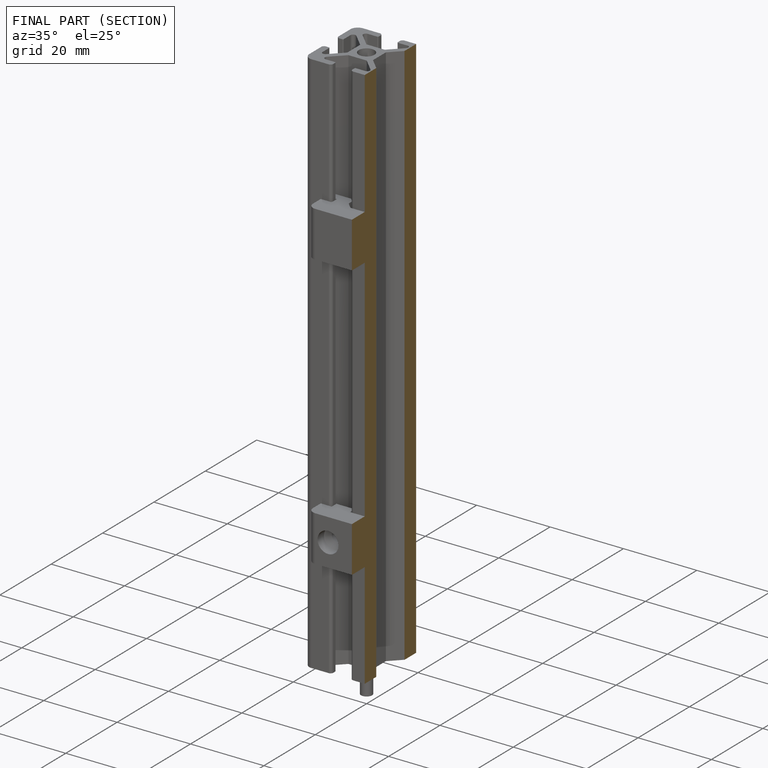
[diagram: finished part — half-section view (interior)]
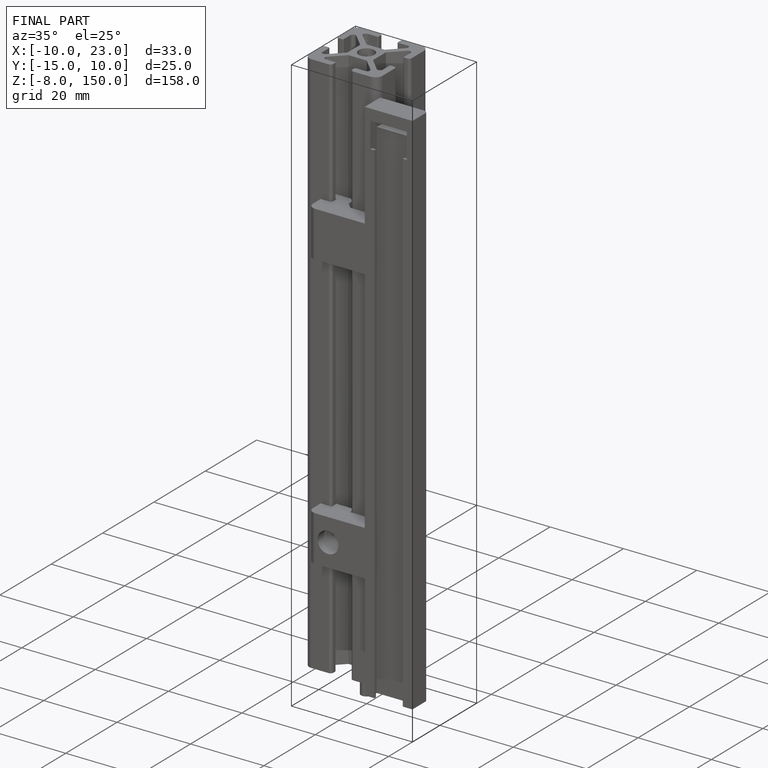
[diagram: finished part — iso view with bounding-box wireframe]
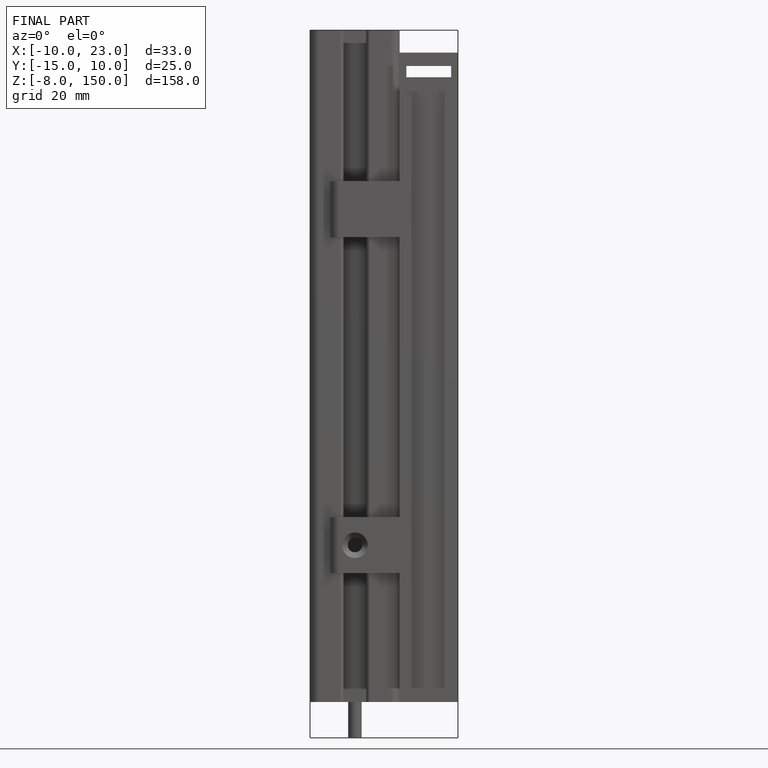
[diagram: finished part — front view with bounding-box wireframe]
